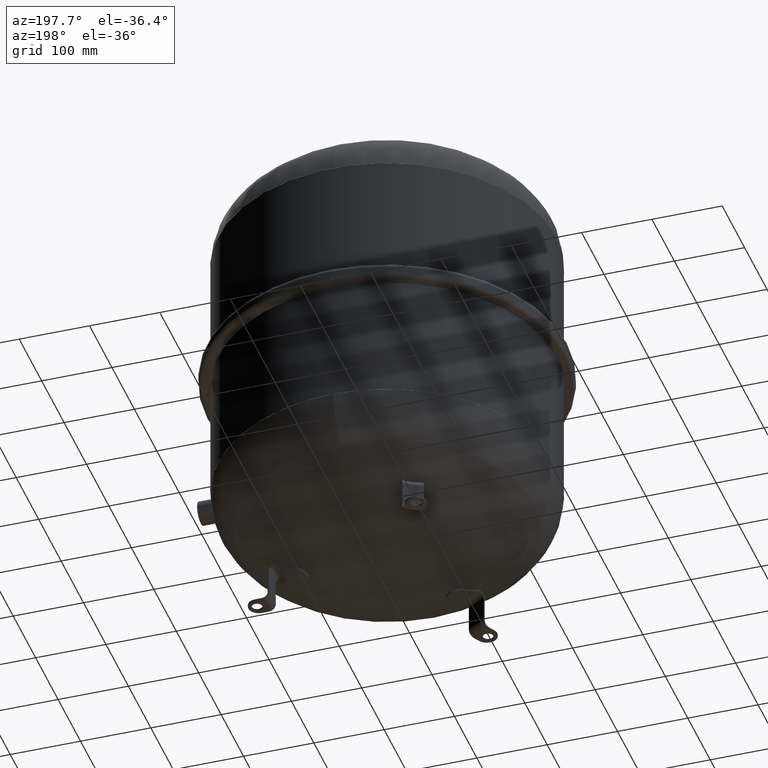
[diagram: clean part render]
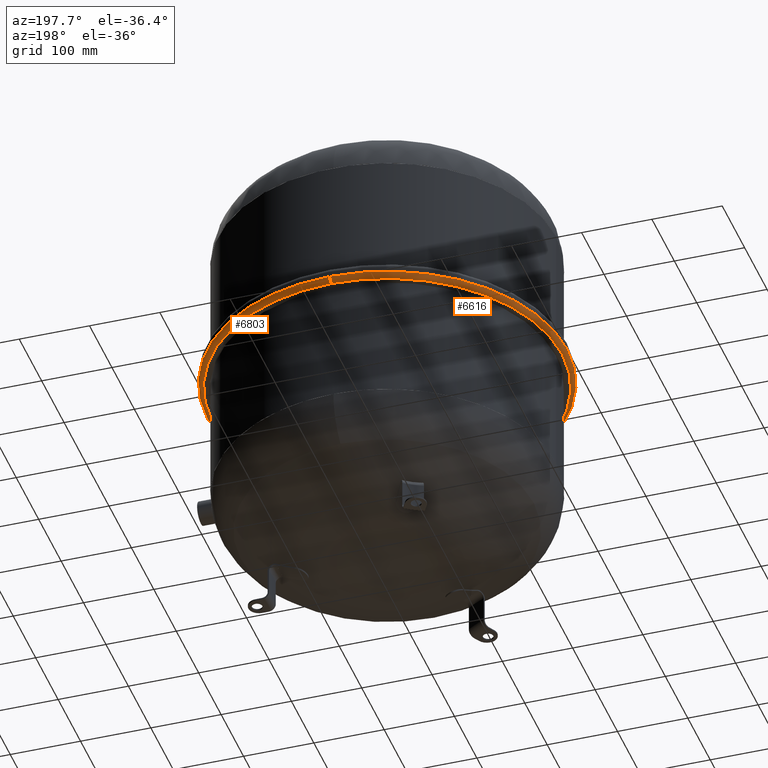
[diagram: same view with one multi-face feature highlighted, each face labeled with its STEP entity id]
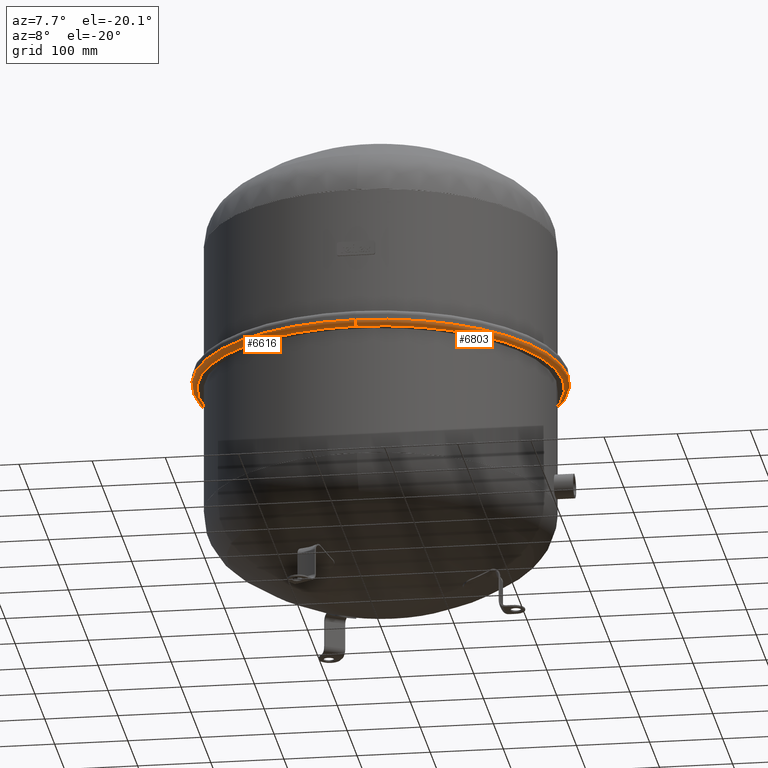
[diagram: same view with one multi-face feature highlighted, each face labeled with its STEP entity id]
A machine part, auxiliary view. The highlighted faces form ONE feature: a constant-radius fillet chain: 2 tangent blend faces with common blend radius 7 mm. The faces share edges in the B-rep.
A second angle (auxiliary view) of the same feature is appended — it is thin or edge-on in the first view.
Their STEP definitions:
[1] entity #6803 (Torus):
#6560=CARTESIAN_POINT('',(0.0,249.00000000000006,328.25));
#6561=VERTEX_POINT('',#6560);
#6562=CARTESIAN_POINT('',(0.0,256.0,335.25));
#6563=VERTEX_POINT('',#6562);
#6564=CARTESIAN_POINT('',(0.0,249.00000000000006,335.25));
#6565=DIRECTION('',(1.0,0.0,0.0));
#6566=DIRECTION('',(0.0,1.0,0.0));
#6567=AXIS2_PLACEMENT_3D('',#6564,#6565,#6566);
#6568=CIRCLE('',#6567,7.000000000000001);
#6569=EDGE_CURVE('',#6561,#6563,#6568,.T.);
#6580=CARTESIAN_POINT('',(-3.049270E-014,-249.00000000000006,328.25));
#6581=VERTEX_POINT('',#6580);
#6589=CARTESIAN_POINT('',(-3.134992E-014,-256.0,335.25));
#6590=VERTEX_POINT('',#6589);
#6591=CARTESIAN_POINT('',(-3.049270E-014,-249.00000000000006,335.25));
#6592=DIRECTION('',(-1.0,0.0,0.0));
#6593=DIRECTION('',(0.0,-1.0,0.0));
#6594=AXIS2_PLACEMENT_3D('',#6591,#6592,#6593);
#6595=CIRCLE('',#6594,7.000000000000001);
#6596=EDGE_CURVE('',#6581,#6590,#6595,.T.);
#6631=CARTESIAN_POINT('',(256.0,-3.112030E-014,335.25));
#6632=VERTEX_POINT('',#6631);
#6633=CARTESIAN_POINT('',(0.0,2.296213E-016,335.25));
#6634=DIRECTION('',(0.0,0.0,-1.0));
#6635=DIRECTION('',(-1.0,0.0,0.0));
#6636=AXIS2_PLACEMENT_3D('',#6633,#6634,#6635);
#6637=CIRCLE('',#6636,256.0);
#6638=EDGE_CURVE('',#6632,#6590,#6637,.T.);
#6774=CARTESIAN_POINT('',(0.0,2.296213E-016,335.25));
#6775=DIRECTION('',(0.0,0.0,-1.0));
#6776=DIRECTION('',(-1.0,0.0,0.0));
#6777=AXIS2_PLACEMENT_3D('',#6774,#6775,#6776);
#6778=CIRCLE('',#6777,256.0);
#6779=EDGE_CURVE('',#6563,#6632,#6778,.T.);
#6785=CARTESIAN_POINT('',(0.0,2.296213E-016,335.25));
#6786=DIRECTION('',(0.0,6.123234E-017,-1.0));
#6787=DIRECTION('',(0.0,1.0,0.0));
#6788=AXIS2_PLACEMENT_3D('',#6785,#6786,#6787);
#6789=TOROIDAL_SURFACE('',#6788,249.00000000000006,7.000000000000001);
#6790=ORIENTED_EDGE('',*,*,#6569,.T.);
#6791=ORIENTED_EDGE('',*,*,#6779,.T.);
#6792=ORIENTED_EDGE('',*,*,#6638,.T.);
#6793=ORIENTED_EDGE('',*,*,#6596,.F.);
#6794=CARTESIAN_POINT('',(0.0,6.582477E-016,328.25));
#6795=DIRECTION('',(0.0,0.0,-1.0));
#6796=DIRECTION('',(-1.0,0.0,0.0));
#6797=AXIS2_PLACEMENT_3D('',#6794,#6795,#6796);
#6798=CIRCLE('',#6797,249.00000000000006);
#6799=EDGE_CURVE('',#6561,#6581,#6798,.T.);
#6800=ORIENTED_EDGE('',*,*,#6799,.F.);
#6801=EDGE_LOOP('',(#6790,#6791,#6792,#6793,#6800));
#6802=FACE_OUTER_BOUND('',#6801,.T.);
#6803=ADVANCED_FACE('',(#6802),#6789,.T.);
[2] entity #6616 (Torus):
#6555=CARTESIAN_POINT('',(0.0,2.296213E-016,335.25));
#6556=DIRECTION('',(0.0,6.123234E-017,-1.0));
#6557=DIRECTION('',(0.0,1.0,0.0));
#6558=AXIS2_PLACEMENT_3D('',#6555,#6556,#6557);
#6559=TOROIDAL_SURFACE('',#6558,249.00000000000006,7.000000000000001);
#6560=CARTESIAN_POINT('',(0.0,249.00000000000006,328.25));
#6561=VERTEX_POINT('',#6560);
#6562=CARTESIAN_POINT('',(0.0,256.0,335.25));
#6563=VERTEX_POINT('',#6562);
#6564=CARTESIAN_POINT('',(0.0,249.00000000000006,335.25));
#6565=DIRECTION('',(1.0,0.0,0.0));
#6566=DIRECTION('',(0.0,1.0,0.0));
#6567=AXIS2_PLACEMENT_3D('',#6564,#6565,#6566);
#6568=CIRCLE('',#6567,7.000000000000001);
#6569=EDGE_CURVE('',#6561,#6563,#6568,.T.);
#6570=ORIENTED_EDGE('',*,*,#6569,.F.);
#6571=CARTESIAN_POINT('',(-249.00000000000006,6.582477E-016,328.25));
#6572=VERTEX_POINT('',#6571);
#6573=CARTESIAN_POINT('',(0.0,6.582477E-016,328.25));
#6574=DIRECTION('',(0.0,0.0,-1.0));
#6575=DIRECTION('',(-1.0,0.0,0.0));
#6576=AXIS2_PLACEMENT_3D('',#6573,#6574,#6575);
#6577=CIRCLE('',#6576,249.00000000000006);
#6578=EDGE_CURVE('',#6572,#6561,#6577,.T.);
#6579=ORIENTED_EDGE('',*,*,#6578,.F.);
#6580=CARTESIAN_POINT('',(-3.049270E-014,-249.00000000000006,328.25));
#6581=VERTEX_POINT('',#6580);
#6582=CARTESIAN_POINT('',(0.0,6.582477E-016,328.25));
#6583=DIRECTION('',(0.0,0.0,-1.0));
#6584=DIRECTION('',(-1.0,0.0,0.0));
#6585=AXIS2_PLACEMENT_3D('',#6582,#6583,#6584);
#6586=CIRCLE('',#6585,249.00000000000006);
#6587=EDGE_CURVE('',#6581,#6572,#6586,.T.);
#6588=ORIENTED_EDGE('',*,*,#6587,.F.);
#6589=CARTESIAN_POINT('',(-3.134992E-014,-256.0,335.25));
#6590=VERTEX_POINT('',#6589);
#6591=CARTESIAN_POINT('',(-3.049270E-014,-249.00000000000006,335.25));
#6592=DIRECTION('',(-1.0,0.0,0.0));
#6593=DIRECTION('',(0.0,-1.0,0.0));
#6594=AXIS2_PLACEMENT_3D('',#6591,#6592,#6593);
#6595=CIRCLE('',#6594,7.000000000000001);
#6596=EDGE_CURVE('',#6581,#6590,#6595,.T.);
#6597=ORIENTED_EDGE('',*,*,#6596,.T.);
#6598=CARTESIAN_POINT('',(-256.0,2.296213E-016,335.25));
#6599=VERTEX_POINT('',#6598);
#6600=CARTESIAN_POINT('',(0.0,2.296213E-016,335.25));
#6601=DIRECTION('',(0.0,0.0,-1.0));
#6602=DIRECTION('',(-1.0,0.0,0.0));
#6603=AXIS2_PLACEMENT_3D('',#6600,#6601,#6602);
#6604=CIRCLE('',#6603,256.0);
#6605=EDGE_CURVE('',#6590,#6599,#6604,.T.);
#6606=ORIENTED_EDGE('',*,*,#6605,.T.);
#6607=CARTESIAN_POINT('',(0.0,2.296213E-016,335.25));
#6608=DIRECTION('',(0.0,0.0,-1.0));
#6609=DIRECTION('',(-1.0,0.0,0.0));
#6610=AXIS2_PLACEMENT_3D('',#6607,#6608,#6609);
#6611=CIRCLE('',#6610,256.0);
#6612=EDGE_CURVE('',#6599,#6563,#6611,.T.);
#6613=ORIENTED_EDGE('',*,*,#6612,.T.);
#6614=EDGE_LOOP('',(#6570,#6579,#6588,#6597,#6606,#6613));
#6615=FACE_OUTER_BOUND('',#6614,.T.);
#6616=ADVANCED_FACE('',(#6615),#6559,.T.);